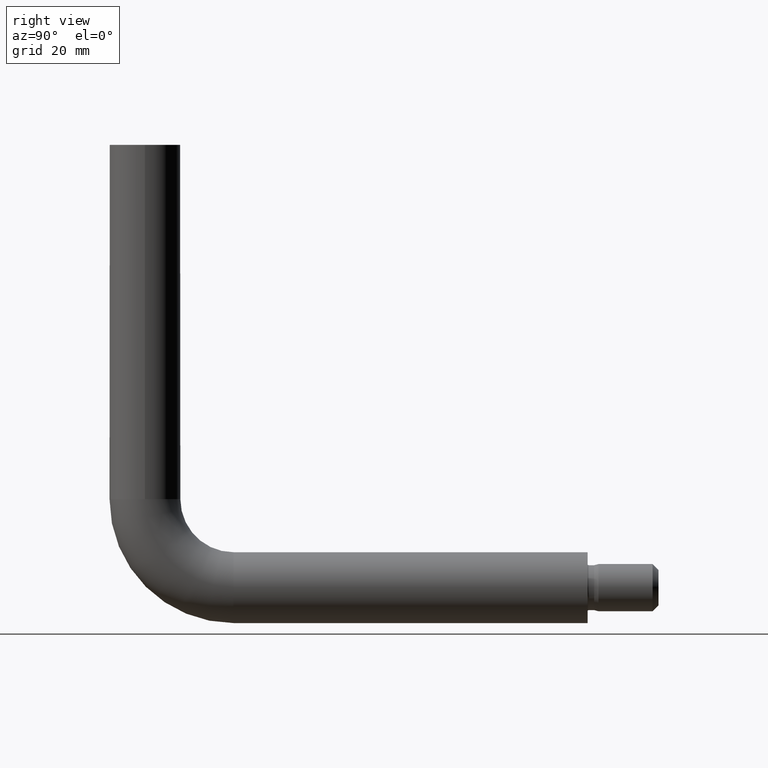
[diagram: clean part render]
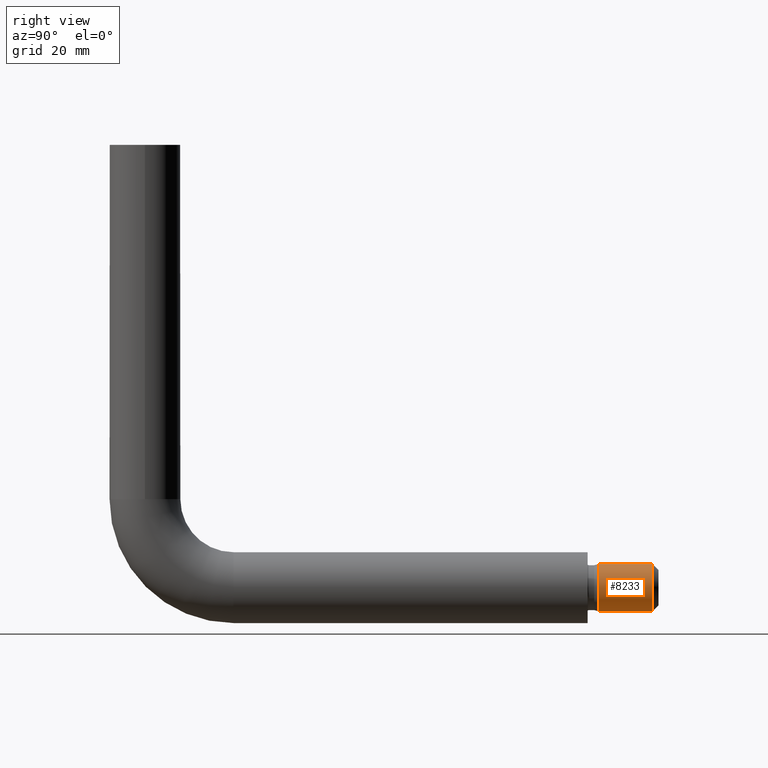
[diagram: same view with one face highlighted and labeled with its STEP entity id]
A machine part, right view. The second image highlights one B-rep face of the part: STEP entity #8233.
In plain terms, the highlighted cylindrical surface (edge-blend (fillet) strip) has radius 4 mm, axis along (-0, -1, -0).
Its self-contained STEP definition (entity closure, byte-faithful):
#138 = CARTESIAN_POINT ( 'NONE',  ( 4.898587196589417800E-016, 76.84557046143389400, -79.00000000000001400 ) ) ;
#762 = ORIENTED_EDGE ( 'NONE', *, *, #1938, .T. ) ;
#1151 = ORIENTED_EDGE ( 'NONE', *, *, #12103, .T. ) ;
#1595 = CARTESIAN_POINT ( 'NONE',  ( 0.0000000000000000000, 76.84557046143389400, -71.00000000000001400 ) ) ;
#1729 = DIRECTION ( 'NONE',  ( -0.0000000000000000000, -1.000000000000000000, -0.0000000000000000000 ) ) ;
#1938 = EDGE_CURVE ( 'NONE', #14513, #12904, #12413, .T. ) ;
#2682 = LINE ( 'NONE', #12047, #10690 ) ;
#2727 = CARTESIAN_POINT ( 'NONE',  ( 0.0000000000000000000, 74.99999999999991500, -75.00000000000001400 ) ) ;
#3894 = CIRCLE ( 'NONE', #9762, 4.000000000000017800 ) ;
#4005 = DIRECTION ( 'NONE',  ( 0.0000000000000000000, 0.0000000000000000000, -1.000000000000000000 ) ) ;
#4132 = CARTESIAN_POINT ( 'NONE',  ( 0.0000000000000000000, 76.84557046143389400, -75.00000000000001400 ) ) ;
#4913 = DIRECTION ( 'NONE',  ( 0.0000000000000000000, 0.0000000000000000000, -1.000000000000000000 ) ) ;
#5118 = EDGE_LOOP ( 'NONE', ( #1151, #5439, #762, #10371 ) ) ;
#5439 = ORIENTED_EDGE ( 'NONE', *, *, #9401, .T. ) ;
#6298 = DIRECTION ( 'NONE',  ( -0.0000000000000000000, -1.000000000000000000, -0.0000000000000000000 ) ) ;
#6401 = CARTESIAN_POINT ( 'NONE',  ( 0.0000000000000000000, 85.99999999999991500, -75.00000000000001400 ) ) ;
#7249 = DIRECTION ( 'NONE',  ( -0.0000000000000000000, -1.000000000000000000, -0.0000000000000000000 ) ) ;
#7389 = VERTEX_POINT ( 'NONE', #13464 ) ;
#7435 = LINE ( 'NONE', #14001, #13232 ) ;
#8052 = AXIS2_PLACEMENT_3D ( 'NONE', #4132, #12883, #8466 ) ;
#8233 = ADVANCED_FACE ( 'NONE', ( #9872 ), #13416, .T. ) ;
#8466 = DIRECTION ( 'NONE',  ( 0.0000000000000000000, 0.0000000000000000000, 1.000000000000000000 ) ) ;
#9401 = EDGE_CURVE ( 'NONE', #7389, #14513, #7435, .T. ) ;
#9593 = DIRECTION ( 'NONE',  ( -0.0000000000000000000, -1.000000000000000000, -0.0000000000000000000 ) ) ;
#9671 = AXIS2_PLACEMENT_3D ( 'NONE', #2727, #7249, #4913 ) ;
#9762 = AXIS2_PLACEMENT_3D ( 'NONE', #6401, #6298, #4005 ) ;
#9872 = FACE_OUTER_BOUND ( 'NONE', #5118, .T. ) ;
#10371 = ORIENTED_EDGE ( 'NONE', *, *, #12696, .F. ) ;
#10378 = CARTESIAN_POINT ( 'NONE',  ( 0.0000000000000000000, 85.99999999999991500, -79.00000000000002800 ) ) ;
#10690 = VECTOR ( 'NONE', #9593, 1000.000000000000000 ) ;
#12047 = CARTESIAN_POINT ( 'NONE',  ( 0.0000000000000000000, 74.99999999999991500, -79.00000000000001400 ) ) ;
#12103 = EDGE_CURVE ( 'NONE', #13426, #7389, #3894, .T. ) ;
#12413 = CIRCLE ( 'NONE', #8052, 4.000000000000003600 ) ;
#12696 = EDGE_CURVE ( 'NONE', #13426, #12904, #2682, .T. ) ;
#12883 = DIRECTION ( 'NONE',  ( -0.0000000000000000000, 1.000000000000000000, -0.0000000000000000000 ) ) ;
#12904 = VERTEX_POINT ( 'NONE', #138 ) ;
#13232 = VECTOR ( 'NONE', #1729, 1000.000000000000000 ) ;
#13416 = CYLINDRICAL_SURFACE ( 'NONE', #9671, 4.000000000000003600 ) ;
#13426 = VERTEX_POINT ( 'NONE', #10378 ) ;
#13464 = CARTESIAN_POINT ( 'NONE',  ( 4.898587196589433500E-016, 85.99999999999991500, -71.00000000000000000 ) ) ;
#14001 = CARTESIAN_POINT ( 'NONE',  ( 4.898587196589425600E-016, 74.99999999999991500, -71.00000000000001400 ) ) ;
#14513 = VERTEX_POINT ( 'NONE', #1595 ) ;